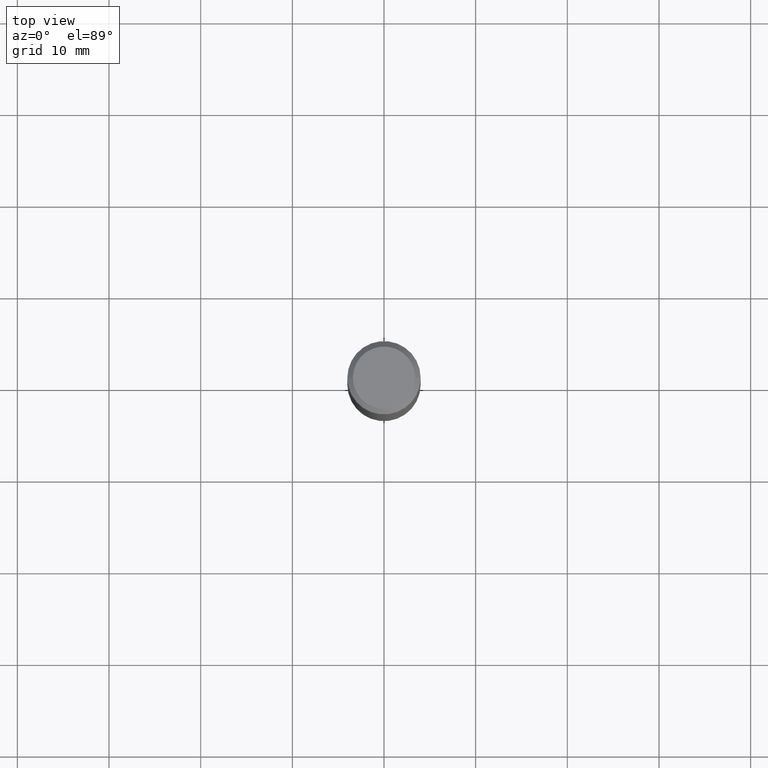
[diagram: clean part render]
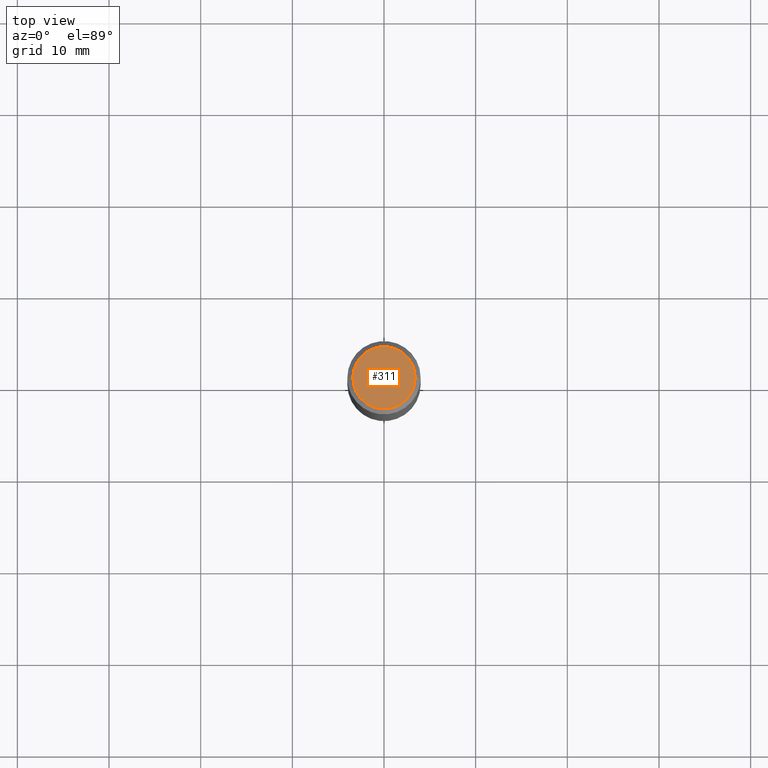
[diagram: same view with one face highlighted and labeled with its STEP entity id]
A machine part, top view. The second image highlights one B-rep face of the part: STEP entity #311.
In plain terms, the highlighted planar face has unit normal (0, -0, -1).
Its self-contained STEP definition (entity closure, byte-faithful):
#12 = PLANE ( 'NONE',  #227 ) ;
#45 = DIRECTION ( 'NONE',  ( -1.000000000000000000, 6.982962677686265922E-15, -4.876176775795935793E-29 ) ) ;
#118 = CARTESIAN_POINT ( 'NONE',  ( -0.1338749999999999940, 9.760872517903331886E-16, 4.101342130337804525E-18 ) ) ;
#127 = CARTESIAN_POINT ( 'NONE',  ( -5.014852121625167883E-47, 7.159879756154482429E-33, 2.050671065172242981E-18 ) ) ;
#128 = EDGE_CURVE ( 'NONE', #305, #447, #398, .T. ) ;
#130 = DIRECTION ( 'NONE',  ( 1.000000000000000000, -6.982962677686266711E-15, 4.876170806578254279E-29 ) ) ;
#193 = EDGE_CURVE ( 'NONE', #447, #305, #412, .T. ) ;
#199 = CARTESIAN_POINT ( 'NONE',  ( -1.002970424325033577E-46, 1.431975951230896486E-32, 4.101342130344485961E-18 ) ) ;
#201 = DIRECTION ( 'NONE',  ( -2.445468806185136597E-29, 3.491481338843145583E-15, 1.000000000000000000 ) ) ;
#202 = CARTESIAN_POINT ( 'NONE',  ( 0.1338749999999999940, -1.040731925365424925E-15, 4.101342130351393887E-18 ) ) ;
#205 = DIRECTION ( 'NONE',  ( -2.445468806185136597E-29, 3.491481338843145583E-15, 1.000000000000000000 ) ) ;
#227 = AXIS2_PLACEMENT_3D ( 'NONE', #127, #380, #45 ) ;
#274 = AXIS2_PLACEMENT_3D ( 'NONE', #199, #201, #350 ) ;
#302 = AXIS2_PLACEMENT_3D ( 'NONE', #459, #205, #130 ) ;
#305 = VERTEX_POINT ( 'NONE', #202 ) ;
#311 = ADVANCED_FACE ( 'NONE', ( #475 ), #12, .F. ) ;
#350 = DIRECTION ( 'NONE',  ( 1.000000000000000000, -6.982962677686266711E-15, 4.876170806578254279E-29 ) ) ;
#380 = DIRECTION ( 'NONE',  ( 2.438088387897960049E-29, -3.491481338843145188E-15, -1.000000000000000000 ) ) ;
#398 = CIRCLE ( 'NONE', #274, 0.1338749999999999940 ) ;
#412 = CIRCLE ( 'NONE', #302, 0.1338749999999999940 ) ;
#443 = ORIENTED_EDGE ( 'NONE', *, *, #128, .T. ) ;
#447 = VERTEX_POINT ( 'NONE', #118 ) ;
#459 = CARTESIAN_POINT ( 'NONE',  ( -1.002970424325033577E-46, 1.431975951230896486E-32, 4.101342130344485961E-18 ) ) ;
#471 = EDGE_LOOP ( 'NONE', ( #482, #443 ) ) ;
#475 = FACE_OUTER_BOUND ( 'NONE', #471, .T. ) ;
#482 = ORIENTED_EDGE ( 'NONE', *, *, #193, .T. ) ;